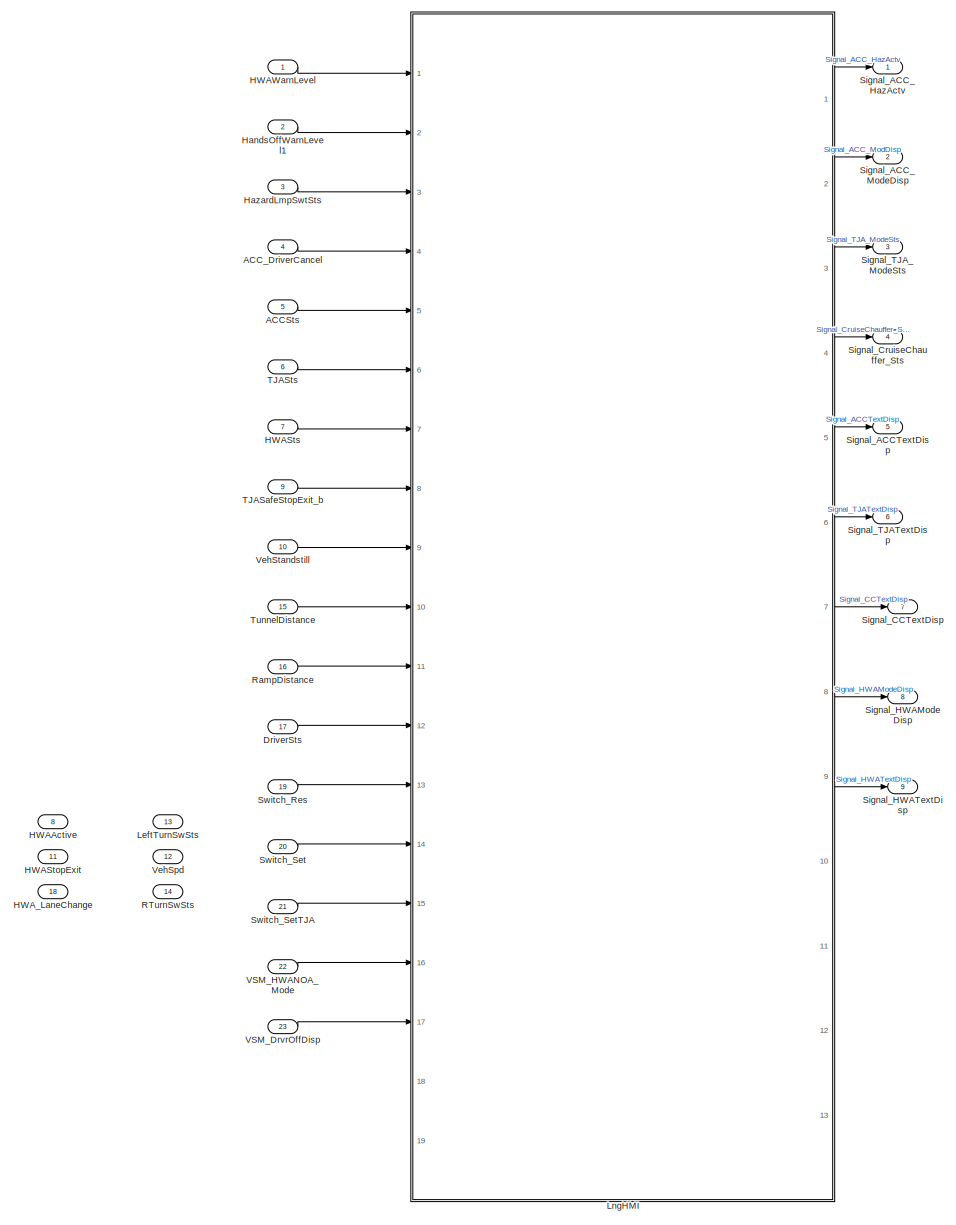
[diagram: root canvas - part 1/1, most of the canvas]
MODEL slx_6ec6e3dc7a06
KIND model
CONFIG AbsTol = auto
CONFIG EnableMultiTasking = off
CONFIG FixedStep = auto
CONFIG InitFcn = , if any(exist('dsmpb_private', 'file') ~= 0), dsmpb_private('dsmpb_mdlclblib', 'Init', bdroot); end,\n
CONFIG MaxStep = auto
CONFIG MinStep = auto
CONFIG PostLoadFcn = if any(exist('dsrtsu_mdlpostloadfcn', 'file') ~= 0), dsrtsu_mdlpostloadfcn('Execute', bdroot); end
CONFIG RelTol = 1e-3
CONFIG SampleTimeConstraint = Unconstrained
CONFIG SolverName = FixedStepAuto
CONFIG StartTime = 0.0
CONFIG StopTime = Inf
BLOCK [Inport] ACCSts
  OutDataTypeStr = Enum: ACC_STATE
  Port = 5
BLOCK [Inport] ACC_DriverCancel
  OutDataTypeStr = boolean
  Port = 4
BLOCK [Inport] DriverSts
  OutDataTypeStr = uint8
  Port = 17
BLOCK [Inport] HWAActive
  OutDataTypeStr = boolean
  Port = 8
BLOCK [Inport] HWAStopExit
  OutDataTypeStr = boolean
  Port = 11
BLOCK [Inport] HWASts
  OutDataTypeStr = Enum: HWA_STATE
  Port = 7
BLOCK [Inport] HWAWarnLevel
  OutDataTypeStr = uint8
BLOCK [Inport] HWA_LaneChange
  OutDataTypeStr = uint8
  Port = 18
BLOCK [Inport] HandsOffWarnLevel1
  OutDataTypeStr = uint8
  Port = 2
BLOCK [Inport] HazardLmpSwtSts
  OutDataTypeStr = boolean
  Port = 3
BLOCK [Inport] LeftTurnSwSts
  OutDataTypeStr = boolean
  Port = 13
BLOCK [SubSystem] LngHMI
  Ports = [19, 13]
  ReferencedSubsystem = PvtSubSys_VSM_LngHMI
  RequestExecContextInheritance = off
BLOCK [Inport] RTurnSwSts
  OutDataTypeStr = boolean
  Port = 14
BLOCK [Inport] RampDistance
  OutDataTypeStr = uint16
  Port = 16
BLOCK [Outport] Signal_ACCTextDisp
  OutDataTypeStr = uint8
  Port = 5
BLOCK [Outport] Signal_ACC_HazActv
  OutDataTypeStr = uint8
BLOCK [Outport] Signal_ACC_ModeDisp
  OutDataTypeStr = uint8
  Port = 2
BLOCK [Outport] Signal_CCTextDisp
  Port = 7
BLOCK [Outport] Signal_CruiseChauffer_Sts
  Port = 4
BLOCK [Outport] Signal_HWAModeDisp
  OutDataTypeStr = uint8
  Port = 8
BLOCK [Outport] Signal_HWATextDisp
  OutDataTypeStr = uint8
  Port = 9
BLOCK [Outport] Signal_TJATextDisp
  OutDataTypeStr = uint8
  Port = 6
BLOCK [Outport] Signal_TJA_ModeSts
  OutDataTypeStr = uint8
  Port = 3
BLOCK [Inport] Switch_Res
  OutDataTypeStr = boolean
  Port = 19
BLOCK [Inport] Switch_Set
  OutDataTypeStr = boolean
  Port = 20
BLOCK [Inport] Switch_SetTJA
  OutDataTypeStr = boolean
  Port = 21
BLOCK [Inport] TJASafeStopExit_b
  OutDataTypeStr = boolean
  Port = 9
BLOCK [Inport] TJASts
  OutDataTypeStr = Enum: TJA_STATE
  Port = 6
BLOCK [Inport] TunnelDistance
  OutDataTypeStr = uint16
  Port = 15
BLOCK [Inport] VSM_DrvrOffDisp
  OutDataTypeStr = boolean
  Port = 23
BLOCK [Inport] VSM_HWANOA_Mode
  OutDataTypeStr = boolean
  Port = 22
BLOCK [Inport] VehSpd
  OutDataTypeStr = single
  Port = 12
BLOCK [Inport] VehStandstill
  OutDataTypeStr = uint8
  Port = 10
LINE ACCSts:1 -> LngHMI:5
LINE ACC_DriverCancel:1 -> LngHMI:4
LINE DriverSts:1 -> LngHMI:12
LINE HWASts:1 -> LngHMI:7
LINE HWAWarnLevel:1 -> LngHMI:1
LINE HandsOffWarnLevel1:1 -> LngHMI:2
LINE HazardLmpSwtSts:1 -> LngHMI:3
LINE LngHMI:1 -> Signal_ACC_HazActv:1
LINE LngHMI:2 -> Signal_ACC_ModeDisp:1
LINE LngHMI:3 -> Signal_TJA_ModeSts:1
LINE LngHMI:4 -> Signal_CruiseChauffer_Sts:1
LINE LngHMI:5 -> Signal_ACCTextDisp:1
LINE LngHMI:6 -> Signal_TJATextDisp:1
LINE LngHMI:7 -> Signal_CCTextDisp:1
LINE LngHMI:8 -> Signal_HWAModeDisp:1
LINE LngHMI:9 -> Signal_HWATextDisp:1
LINE RampDistance:1 -> LngHMI:11
LINE Switch_Res:1 -> LngHMI:13
LINE Switch_Set:1 -> LngHMI:14
LINE Switch_SetTJA:1 -> LngHMI:15
LINE TJASafeStopExit_b:1 -> LngHMI:8
LINE TJASts:1 -> LngHMI:6
LINE TunnelDistance:1 -> LngHMI:10
LINE VSM_DrvrOffDisp:1 -> LngHMI:17
LINE VSM_HWANOA_Mode:1 -> LngHMI:16
LINE VehStandstill:1 -> LngHMI:9
